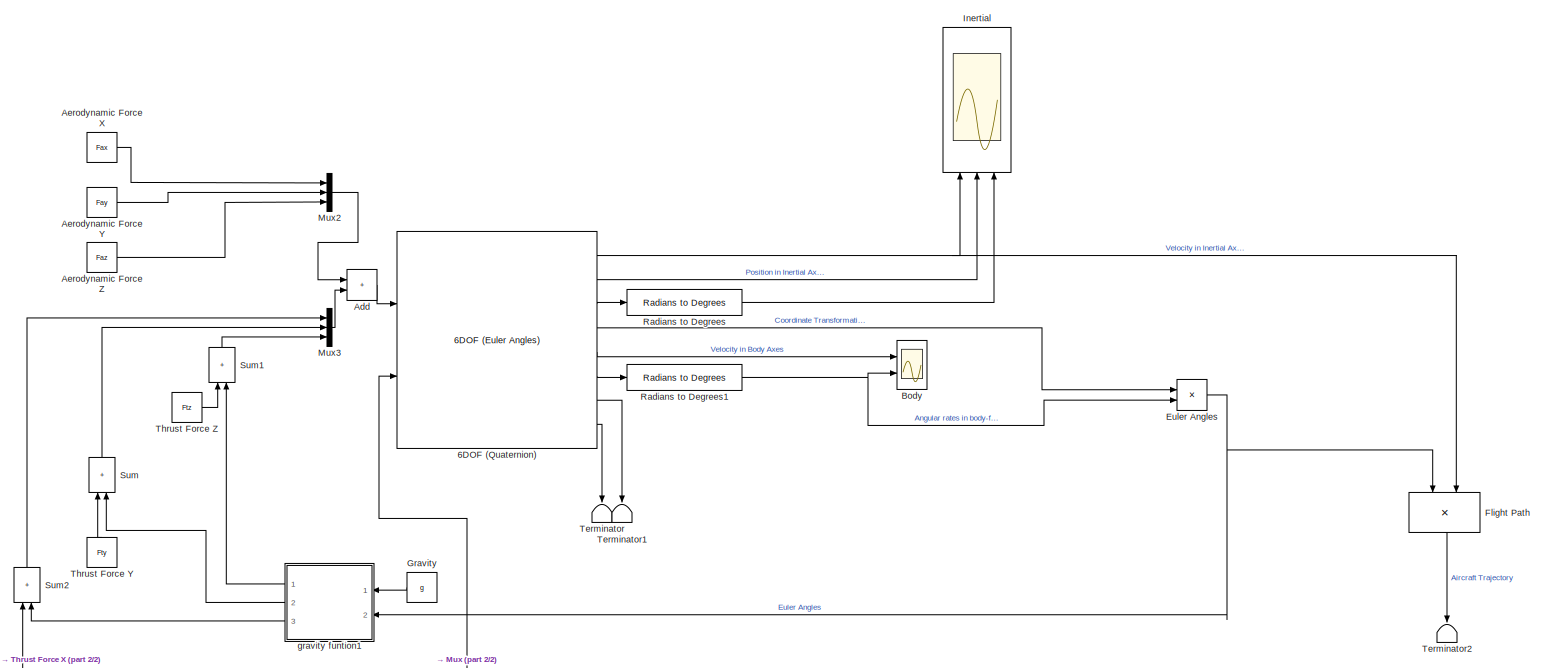
[diagram: root canvas - part 1/2, most of the canvas]
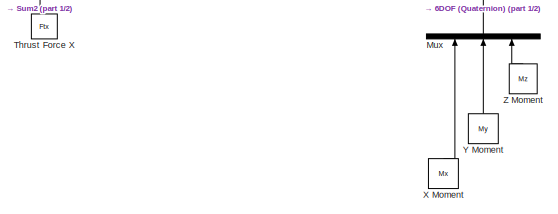
[diagram: root canvas - part 2/2, bottom left region]
MODEL slx_de98e0220125
KIND model
CONFIG AbsTol = auto
CONFIG EnableMultiTasking = off
CONFIG FixedStep = auto
CONFIG MaxStep = auto
CONFIG MinStep = auto
CONFIG RelTol = 1e-3
CONFIG SampleTimeConstraint = Unconstrained
CONFIG SolverName = ode4
CONFIG StartTime = 0.0
CONFIG StopTime = 10.0
BLOCK [Reference] 6DOF (Quaternion)  REF=shared6dof/6DOF (Euler Angles)
  Ports = [2, 8]
  SourceBlock = shared6dof/6DOF (Euler Angles)
  SourceType = 6DOF EoM (Body Axis)
BLOCK [Sum] Add
  IconShape = rectangular
  Ports = [2, 1]
BLOCK [Constant] Aerodynamic Force X
  Value = Fax
BLOCK [Constant] Aerodynamic Force Y
  Value = Fay
BLOCK [Constant] Aerodynamic Force Z
  Value = Faz
BLOCK [Scope] Body
  Floating = off
  NumInputPorts = 2
  Ports = [2]
  ScopeSpecificationString = Simulink.scopes.TimeScopeBlockCfg('CurrentConfiguration', extmgr.ConfigurationSet(extmgr.Configuration('Core','General UI',true),extmgr.Configuration('Core','Source UI',true),extmgr.Configuration('Sources','WiredSimulink',true,'DataLoggingVariableName','ScopeData1'),extmgr.Configuration('Visuals','Time Domain',true),extmgr.Configuration('Tools','Plot Navigation',true),extmgr.Configuration('Tools',...<+113ch>
BLOCK [Product] Euler Angles
  Multiplication = Matrix(*)
  NameLocation = top
  Ports = [2, 1]
BLOCK [Product] Flight Path
  Multiplication = Matrix(*)
  NameLocation = left
  Ports = [2, 1]
BLOCK [Constant] Gravity
  Value = g
BLOCK [Scope] Inertial
  Floating = off
  NameLocation = right
  NumInputPorts = 3
  Ports = [3]
  ScopeSpecificationString = Simulink.scopes.TimeScopeBlockCfg('CurrentConfiguration', extmgr.ConfigurationSet(extmgr.Configuration('Core','General UI',true),extmgr.Configuration('Core','Source UI',true),extmgr.Configuration('Sources','WiredSimulink',true),extmgr.Configuration('Visuals','Time Domain',true),extmgr.Configuration('Tools','Plot Navigation',true),extmgr.Configuration('Tools','Measurements',true,'Version','2023b'))...<+74ch>
BLOCK [Mux] Mux
  DisplayOption = bar
  Inputs = 3
  NameLocation = right
  Ports = [3, 1]
BLOCK [Mux] Mux2
  DisplayOption = bar
  Inputs = 3
  Ports = [3, 1]
BLOCK [Mux] Mux3
  DisplayOption = bar
  Inputs = 3
  Ports = [3, 1]
BLOCK [Reference] Radians to Degrees  REF=simulink_extras/Transformations/Radians
to Degrees
  Ports = [1, 1]
  SourceBlock = simulink_extras/Transformations/Radians\nto Degrees
  SourceType = RadiansToDegrees
BLOCK [Reference] Radians to Degrees1  REF=simulink_extras/Transformations/Radians
to Degrees
  Ports = [1, 1]
  SourceBlock = simulink_extras/Transformations/Radians\nto Degrees
  SourceType = RadiansToDegrees
BLOCK [Sum] Sum
  IconShape = rectangular
  Inputs = |++
  NameLocation = right
  Ports = [2, 1]
BLOCK [Sum] Sum1
  IconShape = rectangular
  Inputs = |++
  NameLocation = right
  Ports = [2, 1]
BLOCK [Sum] Sum2
  IconShape = rectangular
  Inputs = |++
  NameLocation = right
  Ports = [2, 1]
BLOCK [Terminator] Terminator
  NameLocation = left
BLOCK [Terminator] Terminator1
  NameLocation = left
BLOCK [Terminator] Terminator2
  NameLocation = left
BLOCK [Constant] Thrust Force X
  NameLocation = right
  Value = Ftx
BLOCK [Constant] Thrust Force Y
  NameLocation = right
  Value = Fty
BLOCK [Constant] Thrust Force Z
  Value = Ftz
BLOCK [Constant] X Moment
  NameLocation = right
  Value = Mx
BLOCK [Constant] Y Moment
  NameLocation = right
  Value = My
BLOCK [Constant] Z Moment
  NameLocation = right
  Value = Mz
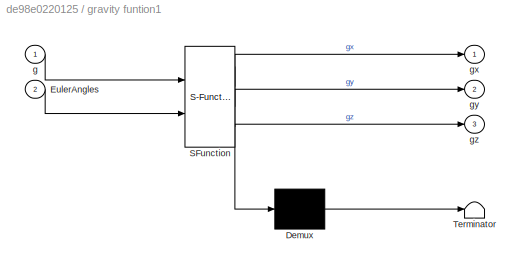
BLOCK [SubSystem] gravity funtion1
  ErrorFcn = Stateflow.Translate.translate
  NameLocation = top
  PermitHierarchicalResolution = ExplicitOnly
  Ports = [2, 3]
  SFBlockType = MATLAB Function
  TreatAsAtomicUnit = on
BLOCK [Demux] gravity funtion1/ Demux 
  Outputs = 1
  Ports = [1, 1]
BLOCK [S-Function] gravity funtion1/ SFunction 
  EnableBusSupport = on
  FunctionName = sf_sfun
  PortCounts = [2 4]
  Ports = [2, 4]
  SFcnIsStateOwnerBlock = off
  SFunctionDeploymentMode = off
  Tag = Stateflow S-Function 6
BLOCK [Terminator] gravity funtion1/ Terminator 
BLOCK [Inport] gravity funtion1/EulerAngles
  Port = 2
BLOCK [Inport] gravity funtion1/g
BLOCK [Outport] gravity funtion1/gx
BLOCK [Outport] gravity funtion1/gy
  Port = 2
BLOCK [Outport] gravity funtion1/gz
  Port = 3
NET 6DOF (Quaternion):1 -> Flight Path:2, Inertial:1
LINE 6DOF (Quaternion):2 -> Inertial:2
LINE 6DOF (Quaternion):3 -> Radians to Degrees:1
LINE 6DOF (Quaternion):4 -> Euler Angles:1
LINE 6DOF (Quaternion):5 -> Body:1
LINE 6DOF (Quaternion):6 -> Radians to Degrees1:1
LINE 6DOF (Quaternion):7 -> Terminator1:1
LINE 6DOF (Quaternion):8 -> Terminator:1
LINE Add:1 -> 6DOF (Quaternion):1
LINE Aerodynamic Force X:1 -> Mux2:1
LINE Aerodynamic Force Y:1 -> Mux2:2
LINE Aerodynamic Force Z:1 -> Mux2:3
NET Euler Angles:1 -> Flight Path:1, gravity funtion1:2
LINE Flight Path:1 -> Terminator2:1
LINE Gravity:1 -> gravity funtion1:1
LINE Mux2:1 -> Add:1
LINE Mux3:1 -> Add:2
LINE Mux:1 -> 6DOF (Quaternion):2
NET Radians to Degrees1:1 -> Body:2, Euler Angles:2
LINE Radians to Degrees:1 -> Inertial:3
LINE Sum1:1 -> Mux3:3
LINE Sum2:1 -> Mux3:1
LINE Sum:1 -> Mux3:2
LINE Thrust Force X:1 -> Sum2:1
LINE Thrust Force Y:1 -> Sum:1
LINE Thrust Force Z:1 -> Sum1:1
LINE X Moment:1 -> Mux:1
LINE Y Moment:1 -> Mux:2
LINE Z Moment:1 -> Mux:3
LINE gravity funtion1:1 -> Sum1:2
LINE gravity funtion1:2 -> Sum:2
LINE gravity funtion1:3 -> Sum2:2
note: NET lines group one-source signal fan-out (src -> all destinations, sorted); 1:1 wires keep LINE
CHART gravity funtion1 states=1 transitions=1
  STATE_LABEL 'eML_blk_kernel()'
  STATE_LABEL 'SCRIPT:\nfunction [gx, gy, gz] = fcn(g,EulerAngles)\n\ngx = -g*sind(EulerAngles(2,1));\ngy = g*((cosd(EulerAngles(2,1))).*(sind(EulerAngles(1,1))));\ngz = g*((cosd(EulerAngles(2,1)).*(cosd(EulerAngles(1,1)))));\n\n\n%function [gx, gy, gz] = fcn(g,phi, theta, psi)\n\n%gx = -gsind(theta);\n%gy = g*((cosd(theta)).*(sind(phi)));\n%gz = g*((cosd(theta)).*(cosd(phi)));\n\n\n'
CHART  states=0 transitions=0
